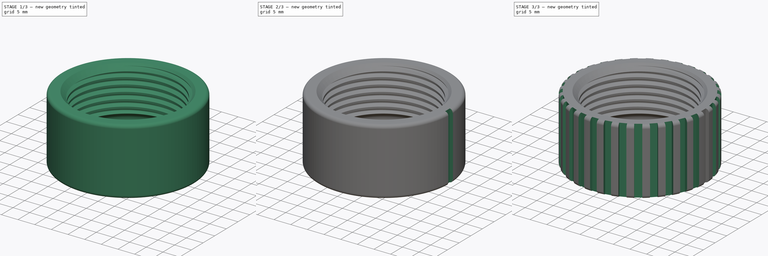
[diagram: build sequence overview — one tinted view per stage of 3, left to right]
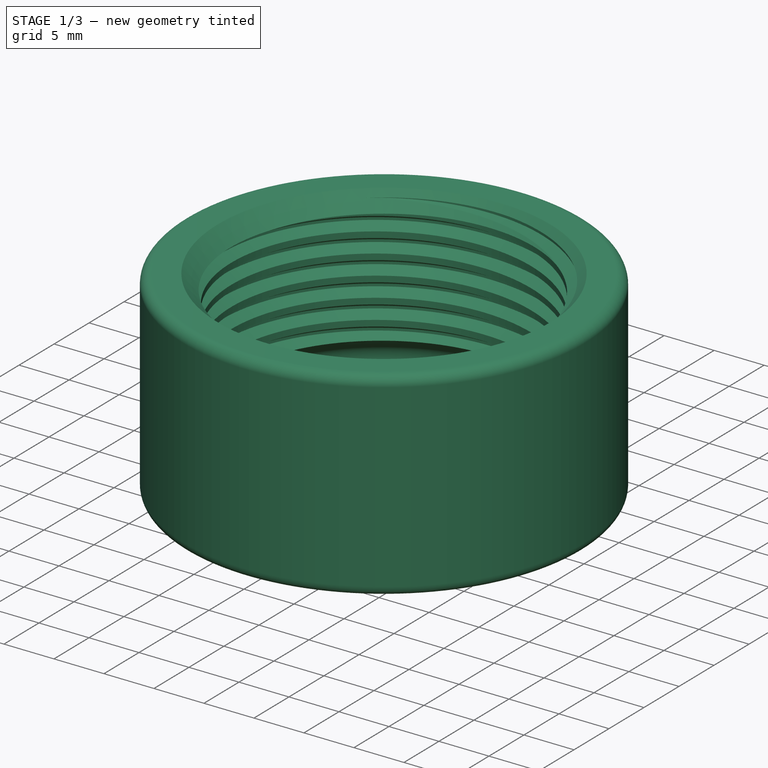
[diagram: stage 1 of 3 — iso view after this stage's code; geometry added in this stage tinted green]
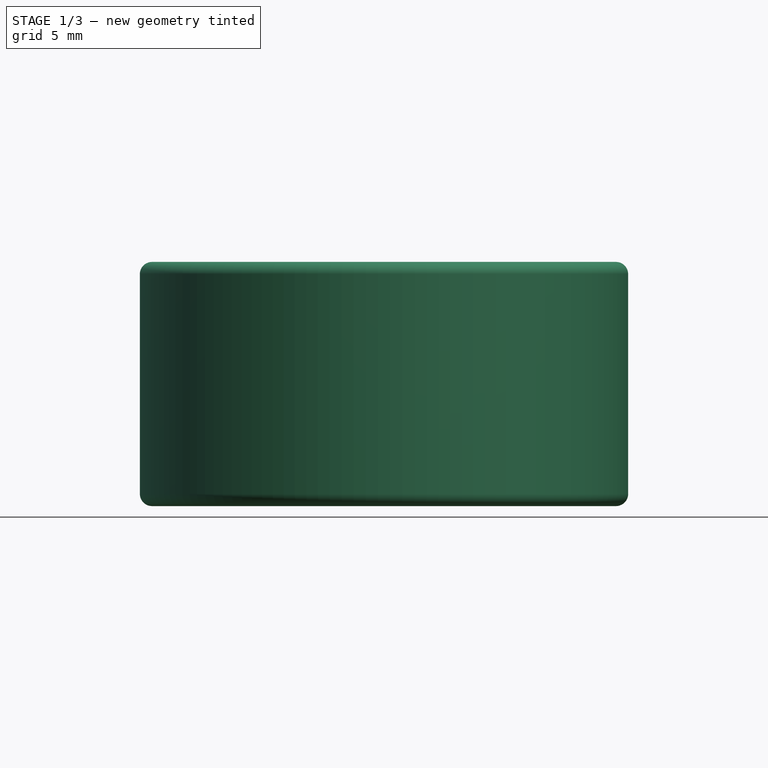
[diagram: stage 1 of 3 — front view after this stage's code; geometry added in this stage tinted green]
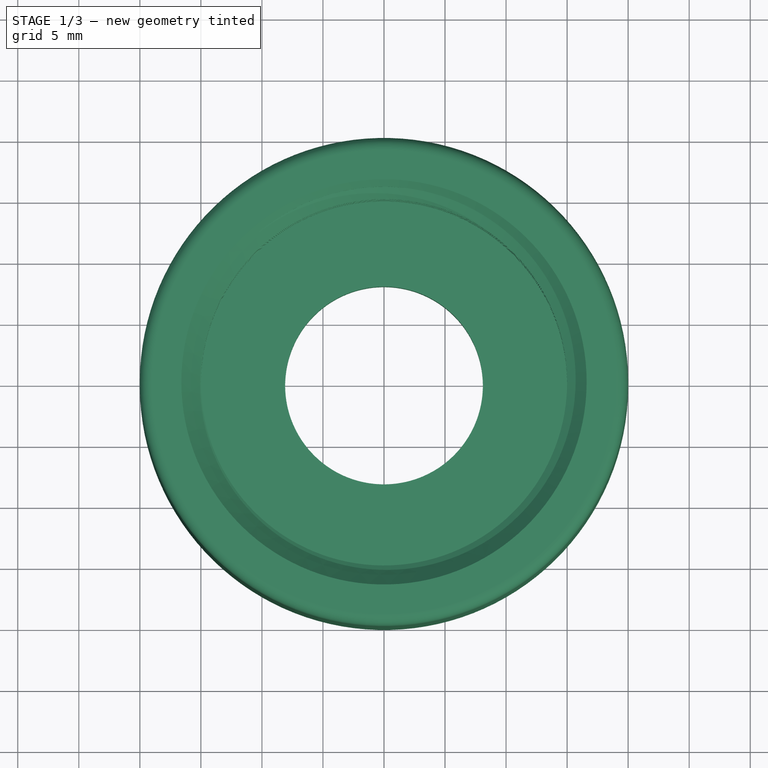
[diagram: stage 1 of 3 — top view after this stage's code; geometry added in this stage tinted green]
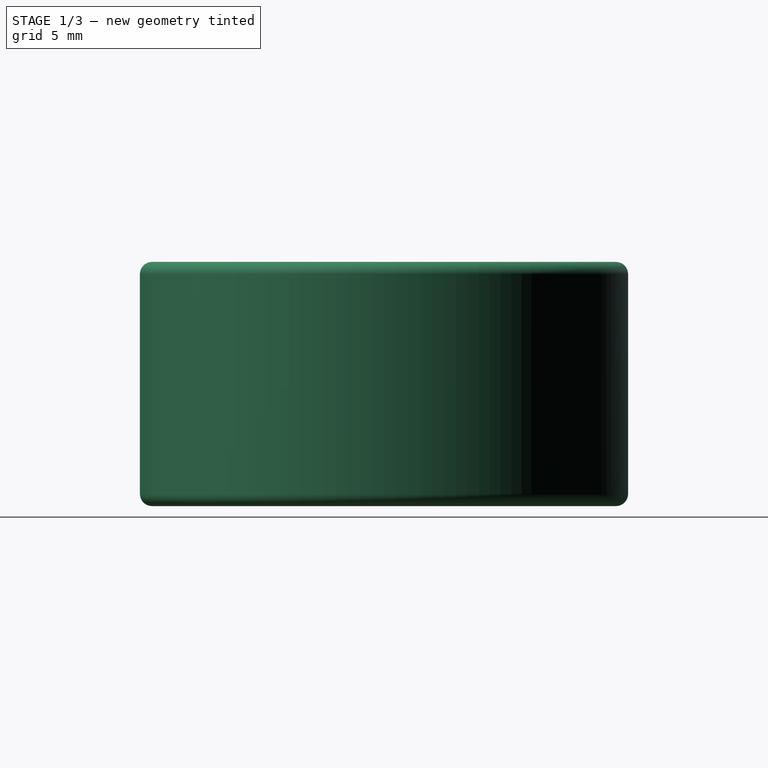
[diagram: stage 1 of 3 — right view after this stage's code; geometry added in this stage tinted green]
FCSTD DOCUMENT  (FreeCAD 0.18R16117 (Git))
Label: Knurled Wheel
License: CreativeCommons Attribution-ShareAlike
LicenseURL: http://creativecommons.org/licenses/by-sa/4.0/
objects: Sketcher::SketchObject×2, Part::Helix×1, PartDesign::Revolution×1, PartDesign::ShapeBinder×1, PartDesign::SubtractivePipe×1, PartDesign::SubtractiveBox×1, PartDesign::PolarPattern×1, PartDesign::Chamfer×1, PartDesign::Body×1
note: 13 computed .brp shape members not serialized (recipe doc carries the construction recipe); baked Part::Feature solids carry a one-line shape summary decoded from their .brp

FEATURE [Sketcher::SketchObject] Sketch002  label="ContourBody"
  MapMode = 5
  Placement = pos=(0,0,0) rot=(1,0,0;1.5708rad)
  Support = -> [XZ_Plane]
  sketch-geometry (11):
    g0: LineSegment StartX=8.1 StartY=0 StartZ=0 EndX=8.1 EndY=3 EndZ=0
    g1: LineSegment StartX=8.1 StartY=3 StartZ=0 EndX=15 EndY=3 EndZ=0
    g2: ArcOfCircle CenterX=15 CenterY=4.65 CenterZ=0 NormalX=0 NormalY=0 NormalZ=1 AngleXU=0 Radius=1.65 StartAngle=4.71239 EndAngle=7.06858
    g3: LineSegment StartX=16.1667 StartY=5.81673 StartZ=0 EndX=15 EndY=6.98345 EndZ=0
    g4: LineSegment StartX=15 StartY=6.98345 StartZ=0 EndX=15 EndY=18.4 EndZ=0
    g5: LineSegment StartX=15 StartY=18.4 StartZ=0 EndX=16.6 EndY=20 EndZ=0
    g6: LineSegment StartX=19 StartY=20 StartZ=0 EndX=16.6 EndY=20 EndZ=0
    g7: ArcOfCircle CenterX=19 CenterY=19 CenterZ=0 NormalX=0 NormalY=0 NormalZ=1 AngleXU=0 Radius=1 StartAngle=0 EndAngle=1.5708
    g8: ArcOfCircle CenterX=19 CenterY=1 CenterZ=0 NormalX=0 NormalY=0 NormalZ=1 AngleXU=0 Radius=1 StartAngle=4.71239 EndAngle=6.28319
    g9: LineSegment StartX=20 StartY=19 StartZ=0 EndX=20 EndY=1 EndZ=0
    g10: LineSegment StartX=8.1 StartY=0 StartZ=0 EndX=19 EndY=0 EndZ=0
  constraints (30):
    c: Vertical(g0)
    c: Coincident(g0,g1)
    c: Horizontal(g1)
    c: Tangent(g2,g3) = -1.5708
    c: Coincident(g3,g4)
    c: Vertical(g4)
    c: Coincident(g4,g5)
    c: DistanceX(g-1,g0) = 8.1
    c: DistanceX(g-1,g4) = 15
    c: Angle(g4,g5) = 2.35619
    c: Coincident(g6,g5)
    c: Horizontal(g6)
    c: Angle(g3,g4) = 2.35619
    c: Tangent(g2,g1) = -1.5708
    c: DistanceY(g-1,g0) = 3
    c: PointOnObject(g2,g4)
    c: Radius(g2) = 1.65
    c: PointOnObject(g0,g-1)
    c: Tangent(g7,g6) = -1.5708
    c: Vertical(g9)
    c: DistanceY(g-1,g6) = 20
    c: Tangent(g9,g7) = 1.5708
    c: Tangent(g9,g8) = 1.5708
    c: Radius(g7) = 1
    c: Equal(g7,g8)
    c: DistanceX(g-1,g8) = 20
    c: DistanceX(g4,g5) = 1.6
    c: Coincident(g10,g0)
    c: Tangent(g10,g8) = -1.5708
    c: Horizontal(g10)
FEATURE [Part::Helix] Helix
  Angle = 0
  AttacherType = Attacher::AttachEngine3D
  Height = 16
  LocalCoord = 0
  Pitch = 2
  Placement = pos=(0,0,4.8) rot=(0,0,1;0rad)
  Radius = 15.351
  Style = 1
FEATURE [Sketcher::SketchObject] Sketch003  label="ContourThread"
  MapMode = 5
  Placement = pos=(0,0,0) rot=(1,0,0;1.5708rad)
  Support = -> [XZ_Plane]
  sketch-geometry (6):
    g0: LineSegment StartX=14.4845 StartY=5.8 StartZ=0 EndX=14.4845 EndY=3.8 EndZ=0
    g1: LineSegment StartX=14.4845 StartY=3.8 StartZ=0 EndX=16 EndY=4.67497 EndZ=0
    g2: LineSegment StartX=16 StartY=4.92503 StartZ=0 EndX=14.4845 EndY=5.8 EndZ=0
    g3: LineSegment StartX=16 StartY=4.92503 StartZ=0 EndX=16 EndY=4.67497 EndZ=0
    g4: LineSegment [constr] StartX=14.4845 StartY=4.8 StartZ=0 EndX=16 EndY=4.8 EndZ=0
    g5: GeomPoint X=15.3505 Y=4.8 Z=0
  constraints (16):
    c: Coincident(g0,g1)
    c: Coincident(g2,g0)
    c: Coincident(g2,g3)
    c: Coincident(g1,g3)
    c: PointOnObject(g4,g0)
    c: PointOnObject(g4,g3)
    c: Symmetric(g1,g2,g4)
    c: Symmetric(g0,g0,g4)
    c: Horizontal(g4)
    c: DistanceX(g4,g4) = 1.5155
    c: Angle(g2,g1) = 1.0472
    c: PointOnObject(g5,g4)
    c: DistanceX(g0,g5) = 0.866
    c: DistanceY(g-1,g4) = 4.8
    c: DistanceX(g-1,g5) = 15.3505
    c: DistanceY(g0,g0) = 2
FEATURE [PartDesign::Revolution] Revolution  label="BaseBody"
  Angle = 360
  Axis = (0,0,1)
  Base = (0,0,0)
  Placement = pos=(0,0,0) rot=(1,0,0;1.5708rad)
  Profile = -> Sketch002
  ReferenceAxis = -> Sketch002 [V_Axis]
  Refine = true
FEATURE [PartDesign::ShapeBinder] CopyHelix
  Placement = pos=(0,0,4.8) rot=(0,0,1;0rad)
  TraceSupport = false
FEATURE [PartDesign::SubtractivePipe] SubtractivePipe  label="Thread"
  AuxilleryCurvelinear = true
  AuxillerySpineTangent = false
  BaseFeature = -> Revolution
  Binormal = (0,0,0)
  Mode = 2
  Placement = pos=(0,0,0) rot=(1,0,0;1.5708rad)
  Profile = -> Sketch003
  Refine = true
  Spine = -> CopyHelix [Edge1,Edge2,Edge3,Edge4,Edge5,Edge6,Edge7,Edge8]
  SpineTangent = false
  Transformation = 0
  Transition = 0
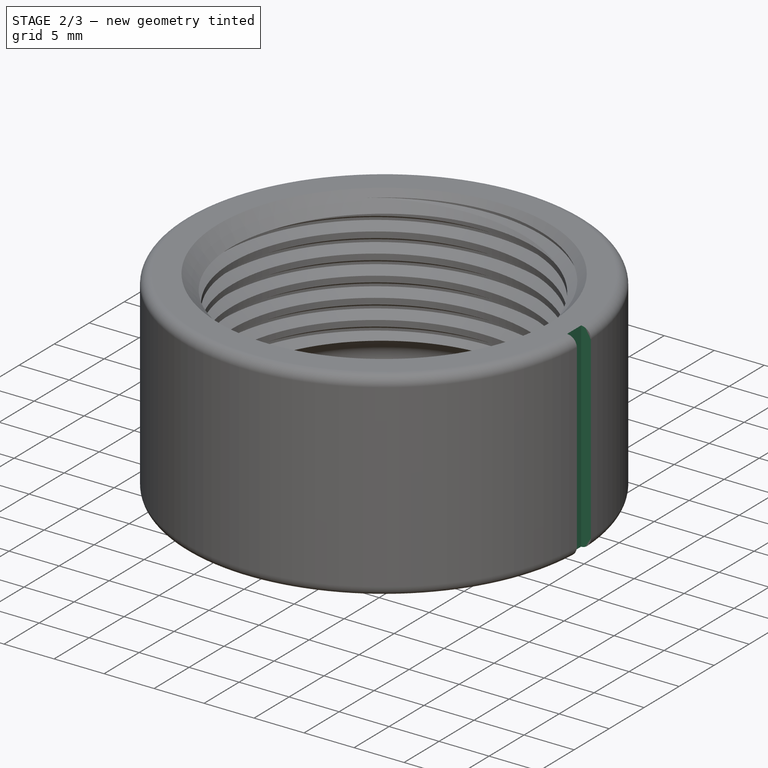
[diagram: stage 2 of 3 — iso view after this stage's code; geometry added in this stage tinted green]
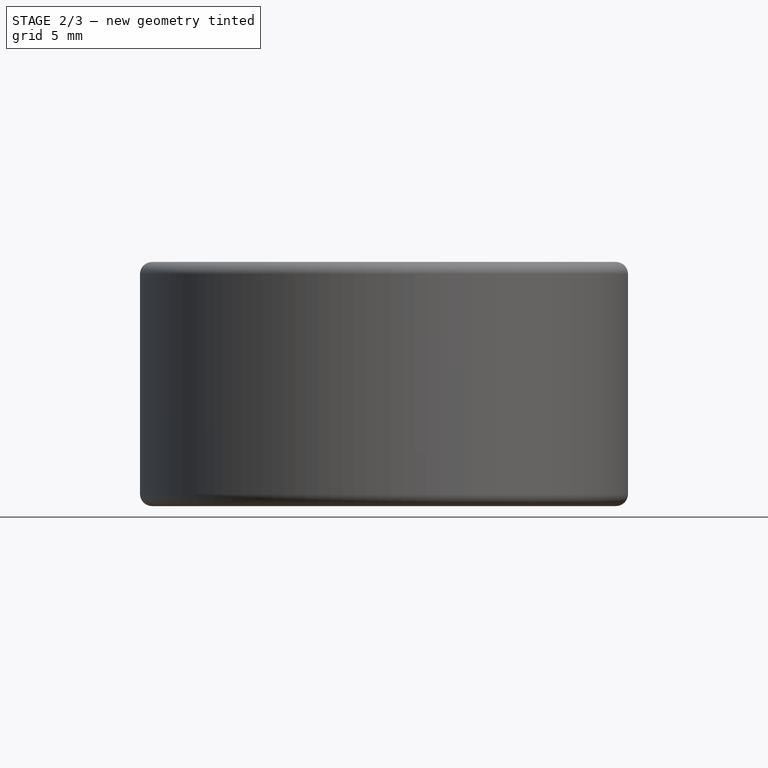
[diagram: stage 2 of 3 — front view after this stage's code; geometry added in this stage tinted green]
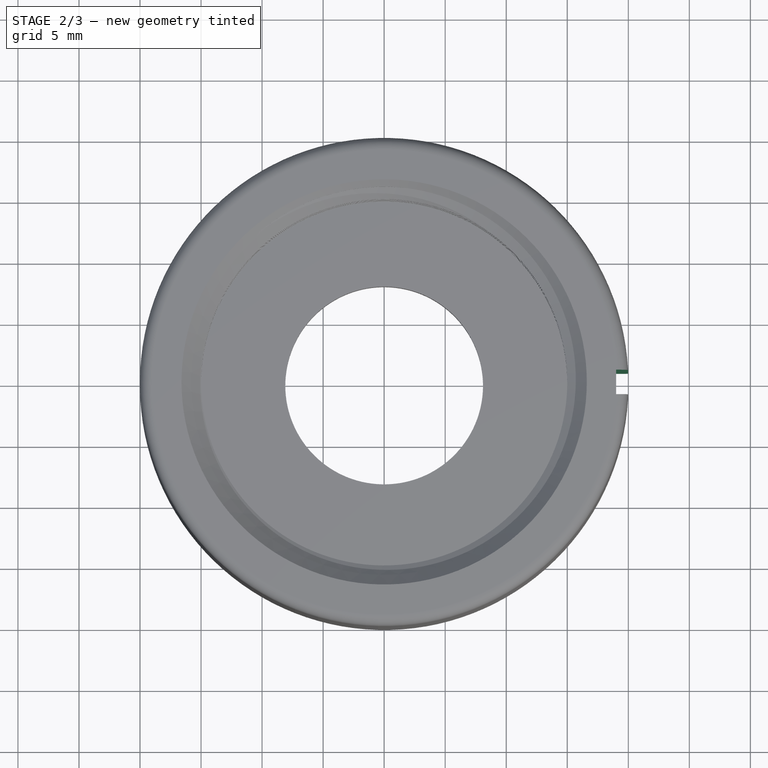
[diagram: stage 2 of 3 — top view after this stage's code; geometry added in this stage tinted green]
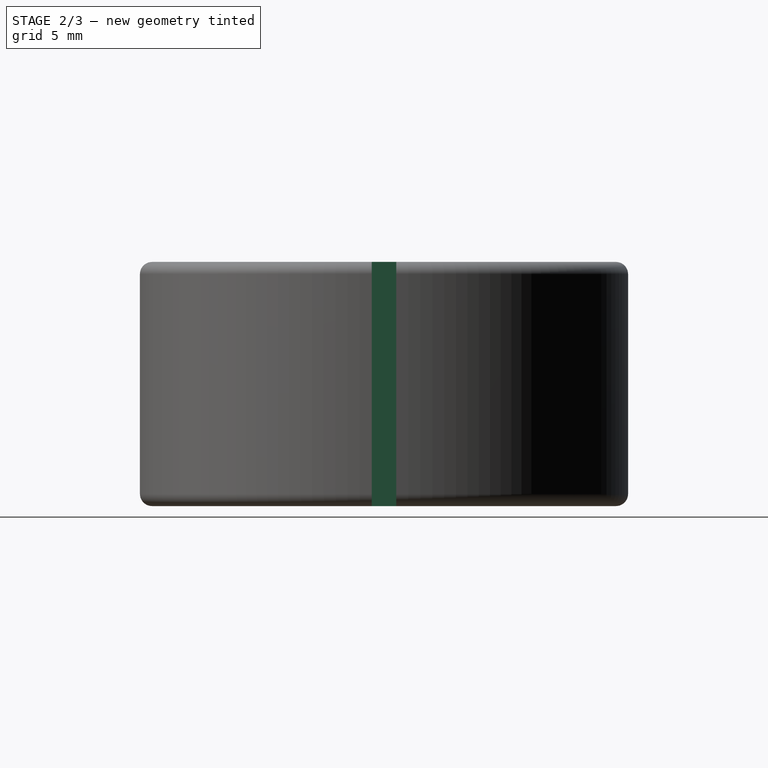
[diagram: stage 2 of 3 — right view after this stage's code; geometry added in this stage tinted green]
FEATURE [PartDesign::SubtractiveBox] Box  label="Groove"
  AttacherType = Attacher::AttachEngine3D
  AttachmentOffset = pos=(19,-1,-1) rot=(0,0,1;0rad)
  BaseFeature = -> SubtractivePipe
  Height = 22
  Length = 2
  MapMode = 5
  Placement = pos=(19,-1,-1) rot=(0,0,1;0rad)
  Support = -> [XY_Plane]
  Width = 2
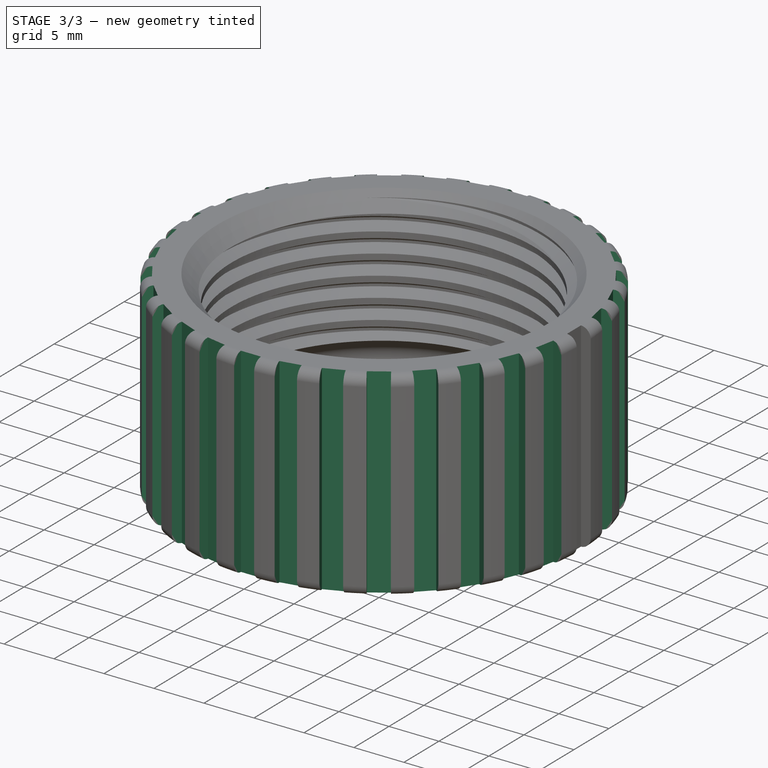
[diagram: stage 3 of 3 — iso view after this stage's code; geometry added in this stage tinted green]
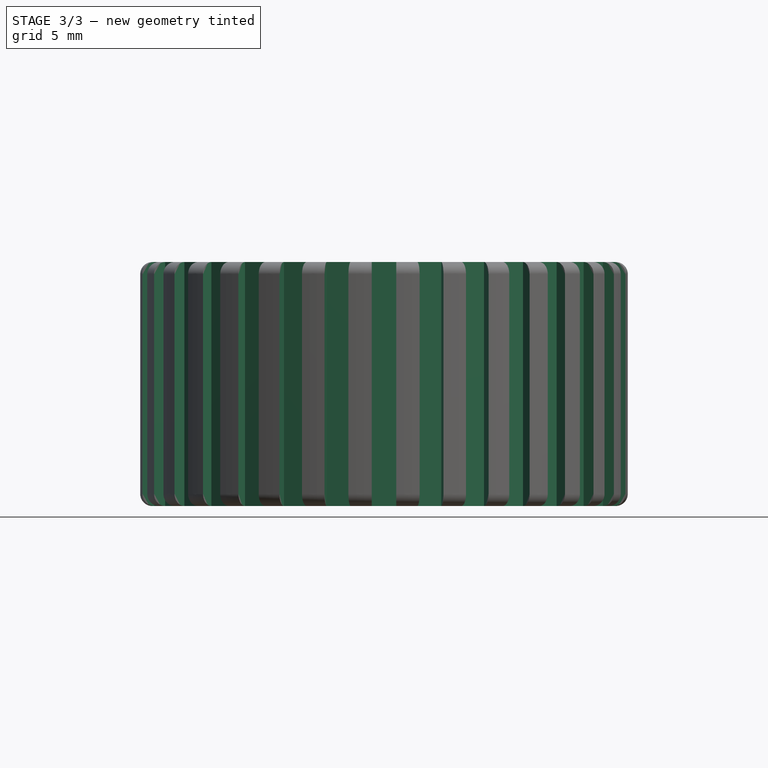
[diagram: stage 3 of 3 — front view after this stage's code; geometry added in this stage tinted green]
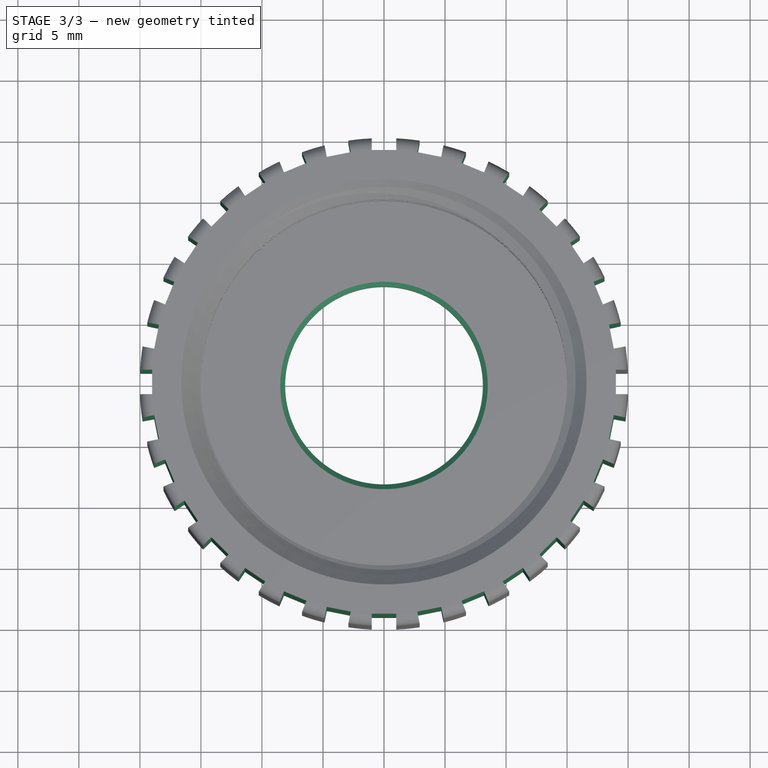
[diagram: stage 3 of 3 — top view after this stage's code; geometry added in this stage tinted green]
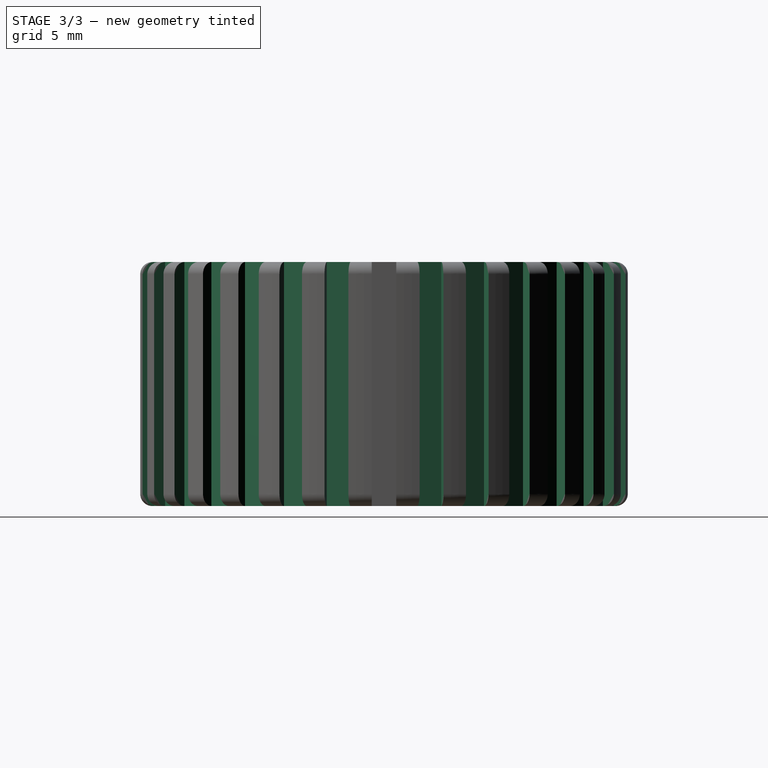
[diagram: stage 3 of 3 — right view after this stage's code; geometry added in this stage tinted green]
FEATURE [PartDesign::PolarPattern] PolarPattern
  Angle = 360
  Axis = -> Z_Axis
  BaseFeature = -> Box
  Occurrences = 32
  Originals = -> [Box]
  Placement = pos=(19,-1,-1) rot=(0,0,1;0rad)
  Refine = true
FEATURE [PartDesign::Chamfer] Chamfer
  Base = -> PolarPattern [Edge2,Edge1]
  BaseFeature = -> PolarPattern
  Placement = pos=(19,-1,-1) rot=(0,0,1;0rad)
  Size = 0.4
FEATURE [PartDesign::Body] Body  label="KnurledWheel"
  Group = -> [Sketch002,Sketch003,Revolution,SubtractivePipe,CopyHelix,Box,PolarPattern,Chamfer]
  Origin = -> Origin
  Tip = -> Chamfer
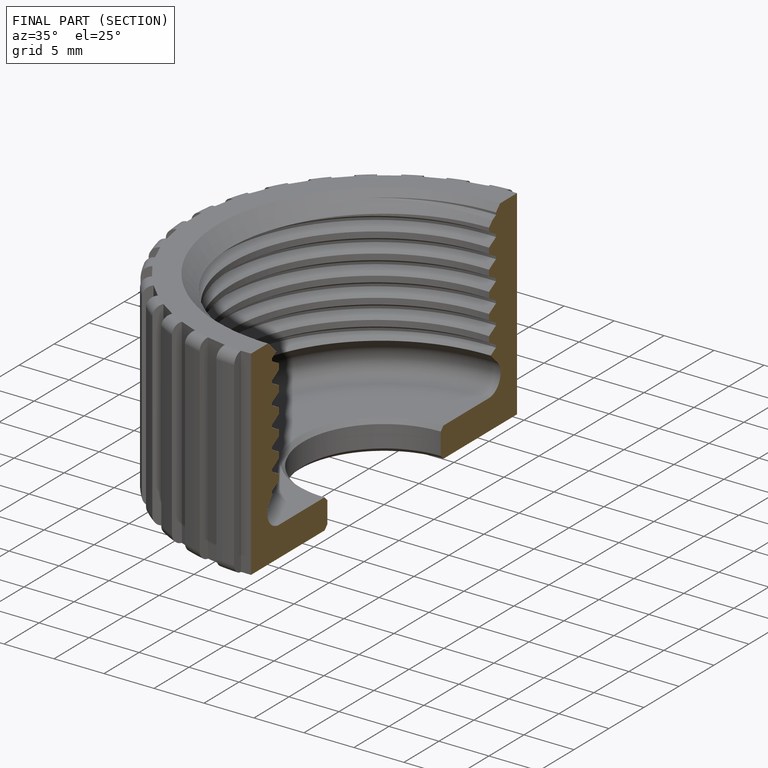
[diagram: finished part — half-section view (interior)]
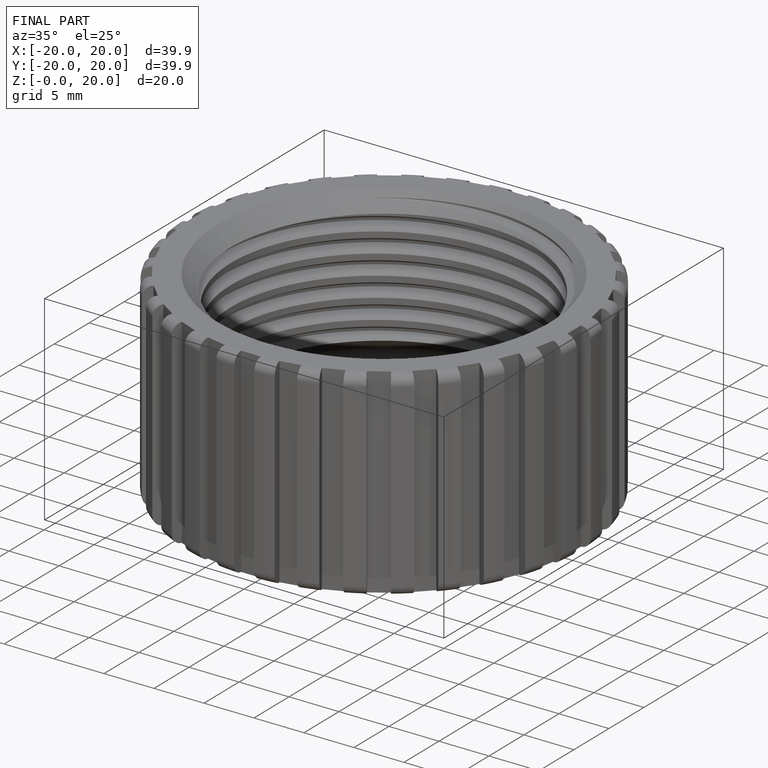
[diagram: finished part — iso view with bounding-box wireframe]
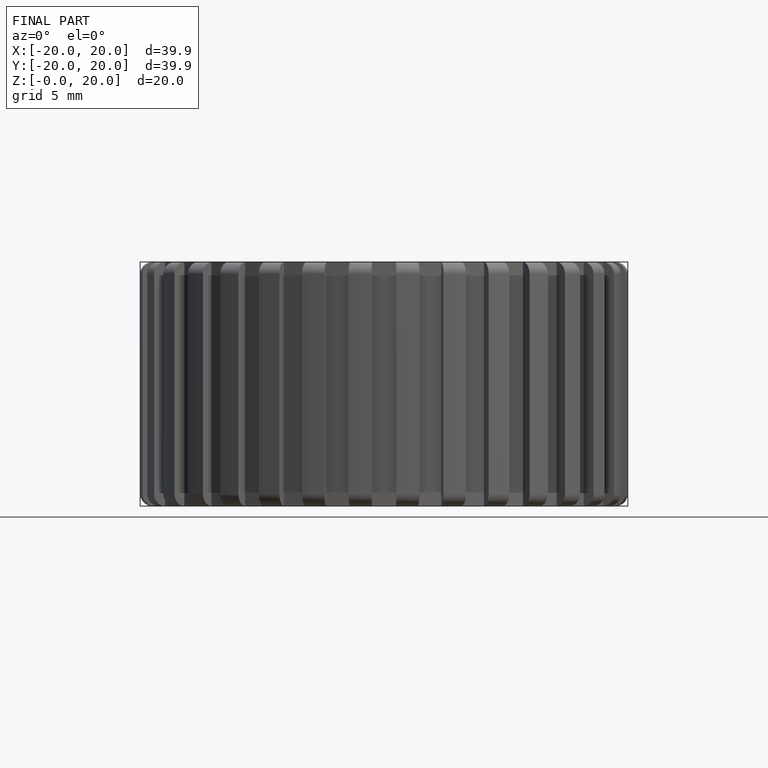
[diagram: finished part — front view with bounding-box wireframe]
